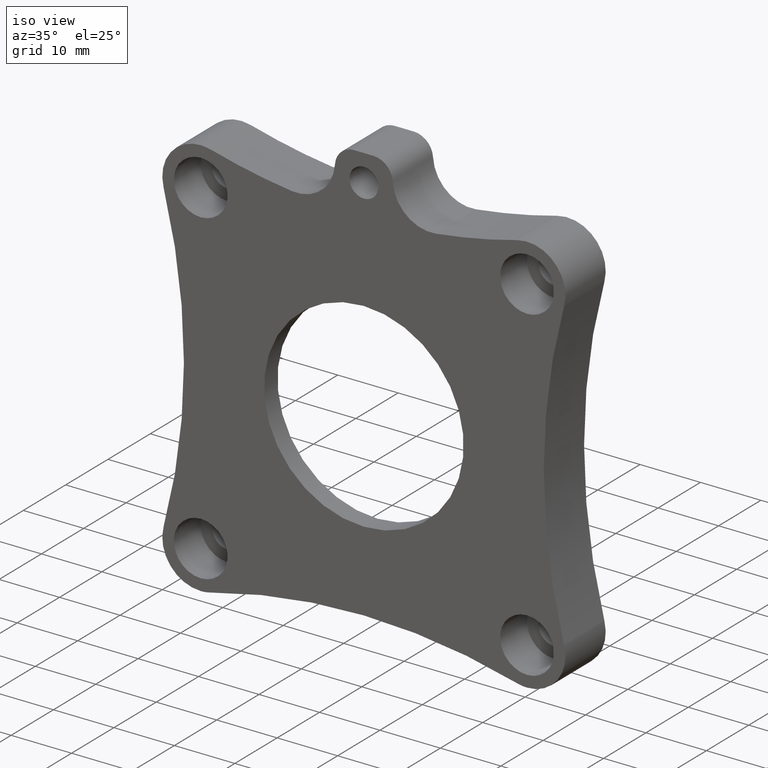
[diagram: clean part render]
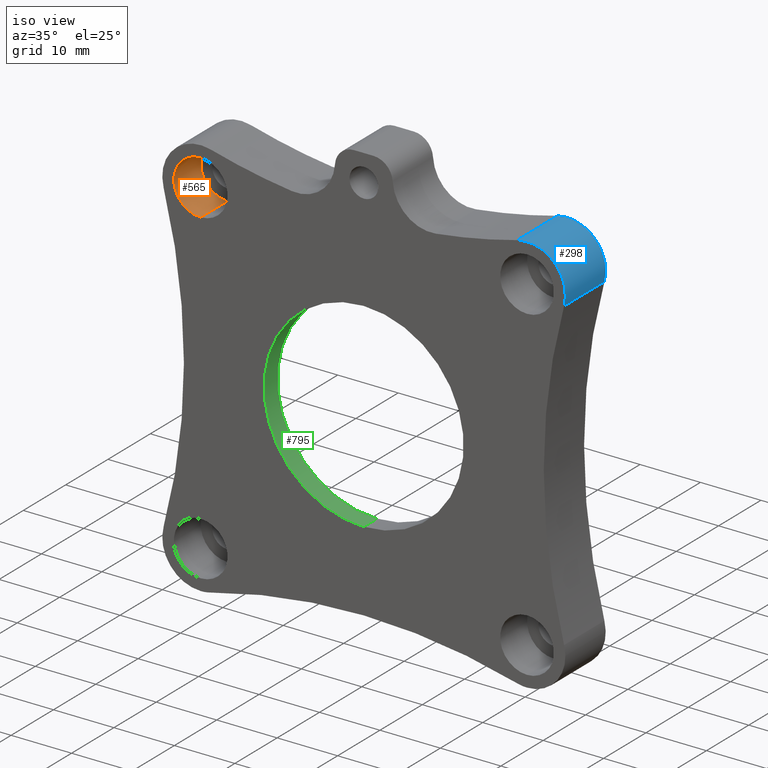
[diagram: same view with three faces highlighted in distinct colors, each labeled with its STEP entity id]
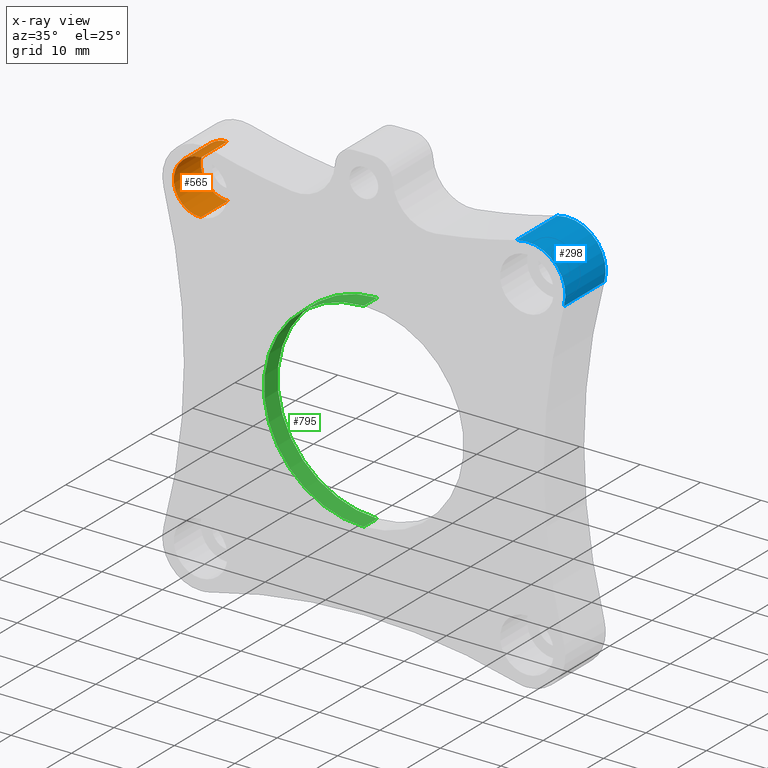
[diagram: x-ray of the same camera — body ghosted, the three highlighted faces saturated]
A machine part, iso view with three faces highlighted in distinct colors.
The next image is the same camera in x-ray (body ghosted, the three faces saturated) — at least one of them is partly hidden behind the body in this view.
Their STEP definitions:

[orange] entity #565 — the highlighted cylindrical surface (edge-blend (fillet) strip) has radius 4.445 mm, axis along (-0, -1, -0).
#86 = DIRECTION ( 'NONE',  ( 0.0000000000000000000, 0.0000000000000000000, -1.000000000000000000 ) ) ;
#96 = EDGE_LOOP ( 'NONE', ( #127, #1305, #1329, #497 ) ) ;
#127 = ORIENTED_EDGE ( 'NONE', *, *, #1108, .F. ) ;
#164 = CYLINDRICAL_SURFACE ( 'NONE', #403, 0.1749999999999999900 ) ;
#168 = VERTEX_POINT ( 'NONE', #198 ) ;
#198 = CARTESIAN_POINT ( 'NONE',  ( 0.2500000000000002200, 0.0000000000000000000, -0.07500000000000005300 ) ) ;
#317 = AXIS2_PLACEMENT_3D ( 'NONE', #1032, #318, #1143 ) ;
#318 = DIRECTION ( 'NONE',  ( 0.0000000000000000000, -1.000000000000000000, 0.0000000000000000000 ) ) ;
#350 = DIRECTION ( 'NONE',  ( -0.0000000000000000000, -1.000000000000000000, -0.0000000000000000000 ) ) ;
#364 = VECTOR ( 'NONE', #1146, 39.37007874015748100 ) ;
#403 = AXIS2_PLACEMENT_3D ( 'NONE', #717, #350, #600 ) ;
#405 = CIRCLE ( 'NONE', #1457, 0.1749999999999999900 ) ;
#463 = LINE ( 'NONE', #1340, #794 ) ;
#488 = VERTEX_POINT ( 'NONE', #1086 ) ;
#497 = ORIENTED_EDGE ( 'NONE', *, *, #1096, .F. ) ;
#512 = FACE_OUTER_BOUND ( 'NONE', #96, .T. ) ;
#556 = CARTESIAN_POINT ( 'NONE',  ( 0.2500000000000001700, 0.2500000000000000000, -0.4249999999999999900 ) ) ;
#565 = ADVANCED_FACE ( 'NONE', ( #512 ), #164, .F. ) ;
#600 = DIRECTION ( 'NONE',  ( 0.0000000000000000000, 0.0000000000000000000, -1.000000000000000000 ) ) ;
#630 = CARTESIAN_POINT ( 'NONE',  ( 0.2500000000000002200, 0.2500000000000000000, -0.07500000000000005300 ) ) ;
#700 = LINE ( 'NONE', #556, #364 ) ;
#715 = EDGE_CURVE ( 'NONE', #168, #488, #1188, .T. ) ;
#717 = CARTESIAN_POINT ( 'NONE',  ( 0.2500000000000001700, 0.2500000000000000000, -0.2500000000000000000 ) ) ;
#768 = DIRECTION ( 'NONE',  ( -0.0000000000000000000, -1.000000000000000000, -0.0000000000000000000 ) ) ;
#794 = VECTOR ( 'NONE', #768, 39.37007874015748100 ) ;
#806 = DIRECTION ( 'NONE',  ( 0.0000000000000000000, -1.000000000000000000, 0.0000000000000000000 ) ) ;
#1032 = CARTESIAN_POINT ( 'NONE',  ( 0.2500000000000001700, 0.0000000000000000000, -0.2500000000000000000 ) ) ;
#1086 = CARTESIAN_POINT ( 'NONE',  ( 0.2500000000000001700, 0.0000000000000000000, -0.4249999999999999900 ) ) ;
#1096 = EDGE_CURVE ( 'NONE', #1130, #488, #700, .T. ) ;
#1108 = EDGE_CURVE ( 'NONE', #1368, #1130, #405, .T. ) ;
#1130 = VERTEX_POINT ( 'NONE', #1157 ) ;
#1143 = DIRECTION ( 'NONE',  ( 0.0000000000000000000, 0.0000000000000000000, -1.000000000000000000 ) ) ;
#1146 = DIRECTION ( 'NONE',  ( -0.0000000000000000000, -1.000000000000000000, -0.0000000000000000000 ) ) ;
#1157 = CARTESIAN_POINT ( 'NONE',  ( 0.2500000000000001700, 0.2500000000000000000, -0.4249999999999999900 ) ) ;
#1163 = EDGE_CURVE ( 'NONE', #1368, #168, #463, .T. ) ;
#1188 = CIRCLE ( 'NONE', #317, 0.1749999999999999900 ) ;
#1305 = ORIENTED_EDGE ( 'NONE', *, *, #1163, .T. ) ;
#1329 = ORIENTED_EDGE ( 'NONE', *, *, #715, .T. ) ;
#1340 = CARTESIAN_POINT ( 'NONE',  ( 0.2500000000000002200, 0.2500000000000000000, -0.07500000000000005300 ) ) ;
#1368 = VERTEX_POINT ( 'NONE', #630 ) ;
#1457 = AXIS2_PLACEMENT_3D ( 'NONE', #1488, #806, #86 ) ;
#1488 = CARTESIAN_POINT ( 'NONE',  ( 0.2500000000000001700, 0.2500000000000000000, -0.2500000000000000000 ) ) ;

[blue] entity #298 — the highlighted cylindrical surface (partial cylindrical patch) has radius 6.35 mm, axis along (0, -1, 0).
#88 = ORIENTED_EDGE ( 'NONE', *, *, #866, .F. ) ;
#141 = DIRECTION ( 'NONE',  ( -0.0000000000000000000, 1.000000000000000000, -0.0000000000000000000 ) ) ;
#187 = VECTOR ( 'NONE', #379, 39.37007874015748100 ) ;
#189 = VERTEX_POINT ( 'NONE', #1462 ) ;
#226 = VERTEX_POINT ( 'NONE', #649 ) ;
#255 = DIRECTION ( 'NONE',  ( 0.0000000000000000000, -1.000000000000000000, 0.0000000000000000000 ) ) ;
#288 = DIRECTION ( 'NONE',  ( -0.0000000000000000000, 1.000000000000000000, -0.0000000000000000000 ) ) ;
#298 = ADVANCED_FACE ( 'NONE', ( #1167 ), #1424, .T. ) ;
#336 = EDGE_CURVE ( 'NONE', #832, #226, #492, .T. ) ;
#375 = CIRCLE ( 'NONE', #1333, 0.2500000000000000600 ) ;
#379 = DIRECTION ( 'NONE',  ( -0.0000000000000000000, 1.000000000000000000, -0.0000000000000000000 ) ) ;
#388 = AXIS2_PLACEMENT_3D ( 'NONE', #1374, #685, #1487 ) ;
#487 = DIRECTION ( 'NONE',  ( 0.0000000000000000000, 0.0000000000000000000, -1.000000000000000000 ) ) ;
#492 = LINE ( 'NONE', #1204, #187 ) ;
#578 = ORIENTED_EDGE ( 'NONE', *, *, #668, .F. ) ;
#612 = EDGE_LOOP ( 'NONE', ( #88, #578, #920, #710 ) ) ;
#619 = CARTESIAN_POINT ( 'NONE',  ( 2.375000000000000000, 0.3750000000000000600, -0.2499999999999999700 ) ) ;
#649 = CARTESIAN_POINT ( 'NONE',  ( 2.616366909433478900, 0.3750000000000000600, -0.3151307533391926000 ) ) ;
#668 = EDGE_CURVE ( 'NONE', #944, #189, #965, .T. ) ;
#685 = DIRECTION ( 'NONE',  ( 0.0000000000000000000, -1.000000000000000000, 0.0000000000000000000 ) ) ;
#710 = ORIENTED_EDGE ( 'NONE', *, *, #336, .T. ) ;
#732 = EDGE_CURVE ( 'NONE', #832, #944, #1496, .T. ) ;
#813 = CARTESIAN_POINT ( 'NONE',  ( 2.309869246660807700, 0.0000000000000000000, -0.008633090566521600000 ) ) ;
#832 = VERTEX_POINT ( 'NONE', #1166 ) ;
#866 = EDGE_CURVE ( 'NONE', #189, #226, #375, .T. ) ;
#920 = ORIENTED_EDGE ( 'NONE', *, *, #732, .F. ) ;
#936 = VECTOR ( 'NONE', #141, 39.37007874015748100 ) ;
#944 = VERTEX_POINT ( 'NONE', #813 ) ;
#965 = LINE ( 'NONE', #1310, #936 ) ;
#1003 = CARTESIAN_POINT ( 'NONE',  ( 2.375000000000000000, 0.3750000000000000600, -0.2499999999999999700 ) ) ;
#1112 = DIRECTION ( 'NONE',  ( 2.185478394931410200E-015, 0.0000000000000000000, -1.000000000000000000 ) ) ;
#1166 = CARTESIAN_POINT ( 'NONE',  ( 2.616366909433478900, 0.0000000000000000000, -0.3151307533391926000 ) ) ;
#1167 = FACE_OUTER_BOUND ( 'NONE', #612, .T. ) ;
#1204 = CARTESIAN_POINT ( 'NONE',  ( 2.616366909433478900, 0.0000000000000000000, -0.3151307533391926000 ) ) ;
#1310 = CARTESIAN_POINT ( 'NONE',  ( 2.309869246660807700, 0.0000000000000000000, -0.008633090566521600000 ) ) ;
#1333 = AXIS2_PLACEMENT_3D ( 'NONE', #1003, #288, #1112 ) ;
#1374 = CARTESIAN_POINT ( 'NONE',  ( 2.375000000000000000, 0.0000000000000000000, -0.2499999999999999700 ) ) ;
#1406 = AXIS2_PLACEMENT_3D ( 'NONE', #619, #255, #487 ) ;
#1424 = CYLINDRICAL_SURFACE ( 'NONE', #1406, 0.2500000000000000600 ) ;
#1462 = CARTESIAN_POINT ( 'NONE',  ( 2.309869246660807700, 0.3750000000000000600, -0.008633090566521600000 ) ) ;
#1487 = DIRECTION ( 'NONE',  ( 0.0000000000000000000, 0.0000000000000000000, -1.000000000000000000 ) ) ;
#1496 = CIRCLE ( 'NONE', #388, 0.2500000000000000600 ) ;

[green] entity #795 — the highlighted cylindrical surface (partial cylindrical patch) has radius 16.51 mm, axis along (-0, 1, -0).
#99 = DIRECTION ( 'NONE',  ( -0.0000000000000000000, 1.000000000000000000, -0.0000000000000000000 ) ) ;
#142 = VECTOR ( 'NONE', #502, 39.37007874015748100 ) ;
#144 = DIRECTION ( 'NONE',  ( -0.0000000000000000000, 1.000000000000000000, -0.0000000000000000000 ) ) ;
#185 = FACE_OUTER_BOUND ( 'NONE', #689, .T. ) ;
#227 = ORIENTED_EDGE ( 'NONE', *, *, #380, .F. ) ;
#280 = AXIS2_PLACEMENT_3D ( 'NONE', #513, #1328, #643 ) ;
#338 = EDGE_CURVE ( 'NONE', #484, #1105, #827, .T. ) ;
#380 = EDGE_CURVE ( 'NONE', #1105, #1395, #745, .T. ) ;
#484 = VERTEX_POINT ( 'NONE', #1308 ) ;
#502 = DIRECTION ( 'NONE',  ( -0.0000000000000000000, 1.000000000000000000, -0.0000000000000000000 ) ) ;
#513 = CARTESIAN_POINT ( 'NONE',  ( 1.312500000000000000, 0.1250000000000000300, -1.312500000000000000 ) ) ;
#583 = CARTESIAN_POINT ( 'NONE',  ( 1.312500000000000000, 0.0000000000000000000, -1.312500000000000000 ) ) ;
#643 = DIRECTION ( 'NONE',  ( 0.0000000000000000000, 0.0000000000000000000, 1.000000000000000000 ) ) ;
#645 = DIRECTION ( 'NONE',  ( 0.0000000000000000000, 0.0000000000000000000, 1.000000000000000000 ) ) ;
#689 = EDGE_LOOP ( 'NONE', ( #1347, #1479, #227, #1335 ) ) ;
#696 = DIRECTION ( 'NONE',  ( 0.0000000000000000000, 0.0000000000000000000, 1.000000000000000000 ) ) ;
#705 = CIRCLE ( 'NONE', #803, 0.6500000000000001300 ) ;
#742 = CYLINDRICAL_SURFACE ( 'NONE', #1033, 0.6500000000000001300 ) ;
#745 = CIRCLE ( 'NONE', #280, 0.6500000000000001300 ) ;
#795 = ADVANCED_FACE ( 'NONE', ( #185 ), #742, .F. ) ;
#803 = AXIS2_PLACEMENT_3D ( 'NONE', #583, #1332, #645 ) ;
#818 = CARTESIAN_POINT ( 'NONE',  ( 1.312500000000000000, 0.0000000000000000000, -1.312500000000000000 ) ) ;
#827 = LINE ( 'NONE', #1320, #142 ) ;
#828 = EDGE_CURVE ( 'NONE', #874, #484, #705, .T. ) ;
#874 = VERTEX_POINT ( 'NONE', #1275 ) ;
#883 = VECTOR ( 'NONE', #144, 39.37007874015748100 ) ;
#982 = CARTESIAN_POINT ( 'NONE',  ( 1.312500000000000000, 0.0000000000000000000, -1.962500000000000100 ) ) ;
#1033 = AXIS2_PLACEMENT_3D ( 'NONE', #818, #99, #696 ) ;
#1098 = CARTESIAN_POINT ( 'NONE',  ( 1.312500000000000000, 0.1250000000000000300, -1.962500000000000100 ) ) ;
#1105 = VERTEX_POINT ( 'NONE', #1258 ) ;
#1179 = LINE ( 'NONE', #982, #883 ) ;
#1258 = CARTESIAN_POINT ( 'NONE',  ( 1.312500000000000000, 0.1250000000000000300, -0.6624999999999998700 ) ) ;
#1275 = CARTESIAN_POINT ( 'NONE',  ( 1.312500000000000000, 0.0000000000000000000, -1.962500000000000100 ) ) ;
#1308 = CARTESIAN_POINT ( 'NONE',  ( 1.312500000000000000, 0.0000000000000000000, -0.6624999999999998700 ) ) ;
#1320 = CARTESIAN_POINT ( 'NONE',  ( 1.312500000000000000, 0.0000000000000000000, -0.6624999999999998700 ) ) ;
#1328 = DIRECTION ( 'NONE',  ( -0.0000000000000000000, -1.000000000000000000, -0.0000000000000000000 ) ) ;
#1332 = DIRECTION ( 'NONE',  ( 0.0000000000000000000, 1.000000000000000000, 0.0000000000000000000 ) ) ;
#1335 = ORIENTED_EDGE ( 'NONE', *, *, #338, .F. ) ;
#1347 = ORIENTED_EDGE ( 'NONE', *, *, #828, .F. ) ;
#1364 = EDGE_CURVE ( 'NONE', #874, #1395, #1179, .T. ) ;
#1395 = VERTEX_POINT ( 'NONE', #1098 ) ;
#1479 = ORIENTED_EDGE ( 'NONE', *, *, #1364, .T. ) ;